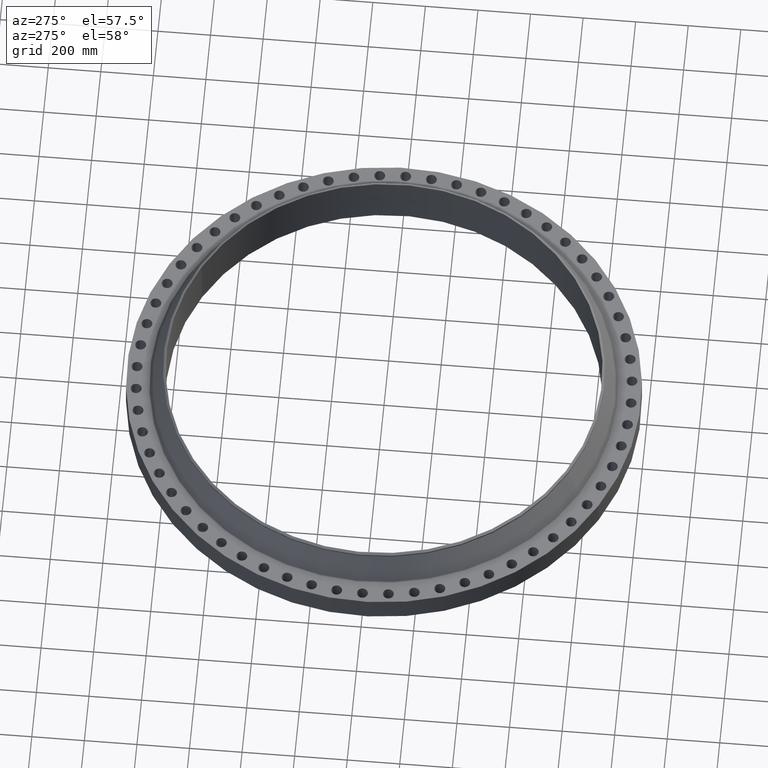
[diagram: clean part render]
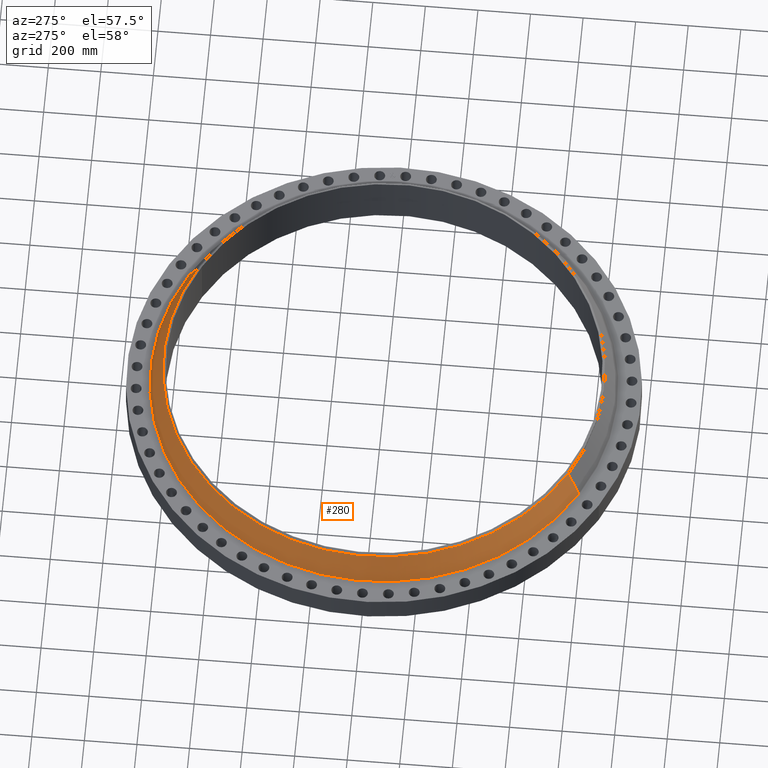
[diagram: same view with one face highlighted and labeled with its STEP entity id]
A machine part, auxiliary view. The second image highlights one B-rep face of the part: STEP entity #280.
In plain terms, the highlighted conical surface has half-angle 26.428 deg.
Its self-contained STEP definition (entity closure, byte-faithful):
#228=AXIS2_PLACEMENT_3D('Circle Axis2P3D',#226,#227,$) ;
#241=AXIS2_PLACEMENT_3D('Cone Axis2P3D',#238,#239,#240) ;
#271=AXIS2_PLACEMENT_3D('Circle Axis2P3D',#269,#270,$) ;
#199=CARTESIAN_POINT('Vertex',(16.7468365701,30.654878719,4.13873078601)) ;
#206=CARTESIAN_POINT('Vertex',(-16.7468365701,-30.654878719,4.13873078601)) ;
#226=CARTESIAN_POINT('Axis2P3D Location',(0.,0.,4.13873078601)) ;
#238=CARTESIAN_POINT('Axis2P3D Location',(0.,0.,8.02398984385)) ;
#243=CARTESIAN_POINT('Line Origine',(16.283939672,29.8075516308,6.08136031493)) ;
#247=CARTESIAN_POINT('Vertex',(15.821042774,28.9602245425,8.02398984385)) ;
#254=CARTESIAN_POINT('Vertex',(-15.821042774,-28.9602245425,8.02398984385)) ;
#257=CARTESIAN_POINT('Line Origine',(-16.283939672,-29.8075516308,6.08136031493)) ;
#269=CARTESIAN_POINT('Axis2P3D Location',(0.,0.,8.02398984385)) ;
#227=DIRECTION('Axis2P3D Direction',(0.,0.,-0.0393700787402)) ;
#239=DIRECTION('Axis2P3D Direction',(0.,0.,-0.0393700787402)) ;
#240=DIRECTION('Axis2P3D XDirection',(-0.0188750212049,-0.0345504945626,0.)) ;
#244=DIRECTION('Vector Direction',(0.00840083509534,0.0153776254941,-0.035255605283)) ;
#258=DIRECTION('Vector Direction',(-0.00840083509534,-0.0153776254941,-0.035255605283)) ;
#270=DIRECTION('Axis2P3D Direction',(0.,0.,-0.0393700787402)) ;
#245=VECTOR('Line Direction',#244,0.0393700787402) ;
#259=VECTOR('Line Direction',#258,0.0393700787402) ;
#275=ORIENTED_EDGE('',*,*,#230,.F.) ;
#276=ORIENTED_EDGE('',*,*,#261,.T.) ;
#277=ORIENTED_EDGE('',*,*,#273,.T.) ;
#278=ORIENTED_EDGE('',*,*,#249,.F.) ;
#280=ADVANCED_FACE('PartBody',(#279),#242,.T.) ;
#229=CIRCLE('generated circle',#228,34.9310481432) ;
#272=CIRCLE('generated circle',#271,33.0000000001) ;
#242=CONICAL_SURFACE('Cone',#241,33.0000000001,0.461260084446) ;
#230=EDGE_CURVE('',#207,#200,#229,.T.) ;
#249=EDGE_CURVE('',#200,#248,#246,.F.) ;
#261=EDGE_CURVE('',#207,#255,#260,.F.) ;
#273=EDGE_CURVE('',#255,#248,#272,.T.) ;
#274=EDGE_LOOP('',(#275,#276,#277,#278)) ;
#279=FACE_OUTER_BOUND('',#274,.T.) ;
#246=LINE('Line',#243,#245) ;
#260=LINE('Line',#257,#259) ;
#200=VERTEX_POINT('',#199) ;
#207=VERTEX_POINT('',#206) ;
#248=VERTEX_POINT('',#247) ;
#255=VERTEX_POINT('',#254) ;